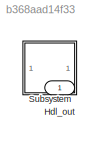
MODEL slx_b368aad14f33
KIND model
CONFIG AbsTol = auto
CONFIG EnableMultiTasking = off
CONFIG FixedStep = auto
CONFIG MaxStep = auto
CONFIG MinStep = auto
CONFIG RelTol = 1e-3
CONFIG SampleTimeConstraint = Unconstrained
CONFIG SolverName = VariableStepAuto
CONFIG StartTime = 0.0
CONFIG StopTime = 10.0
BLOCK [Outport] Hdl_out
  OutDataTypeStr = uint8
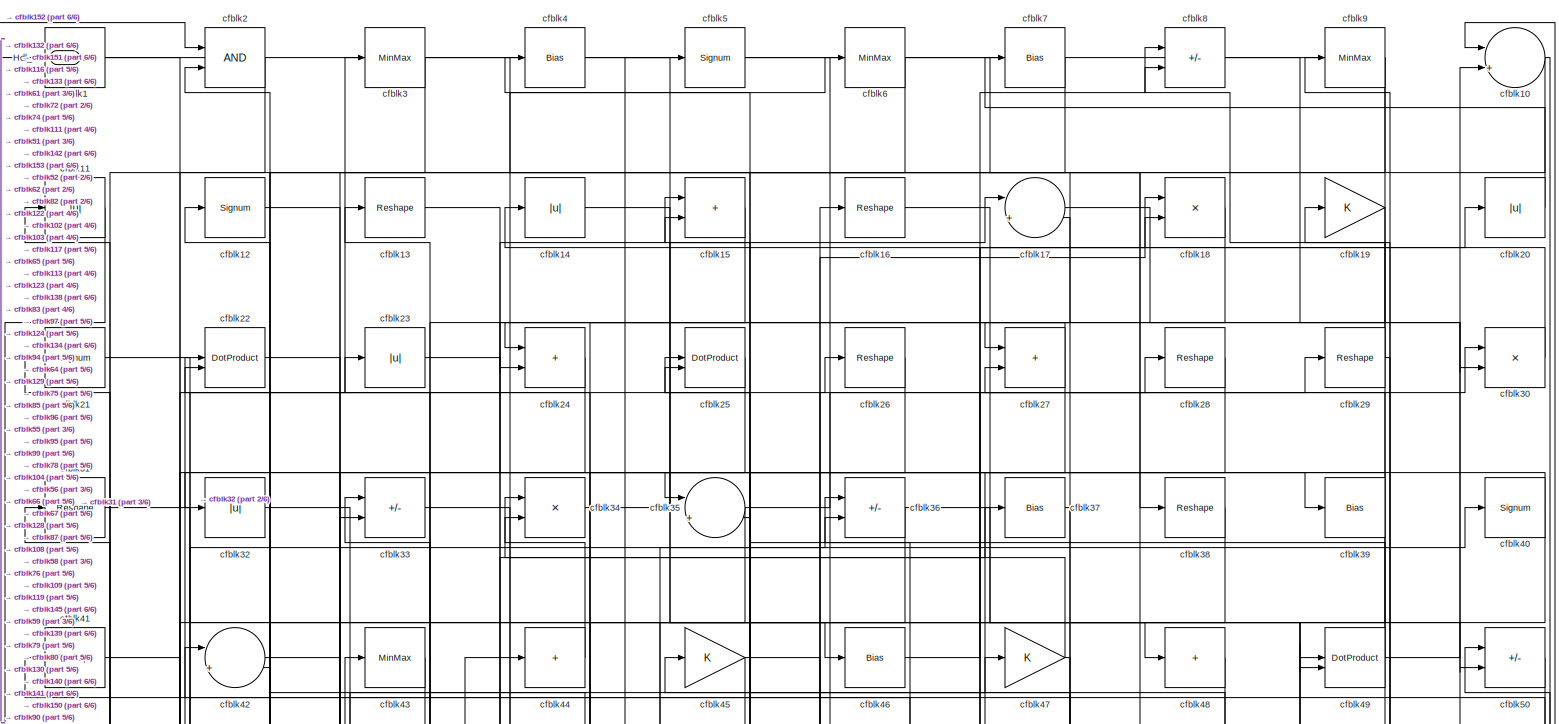
[diagram: Subsystem - part 1/6, full width, top band]
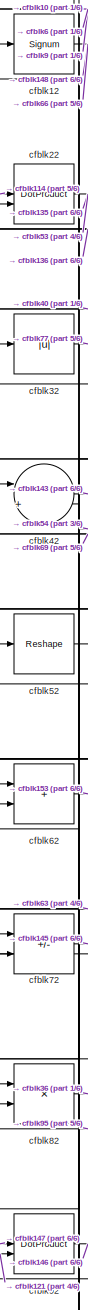
[diagram: Subsystem - part 2/6, middle left region]
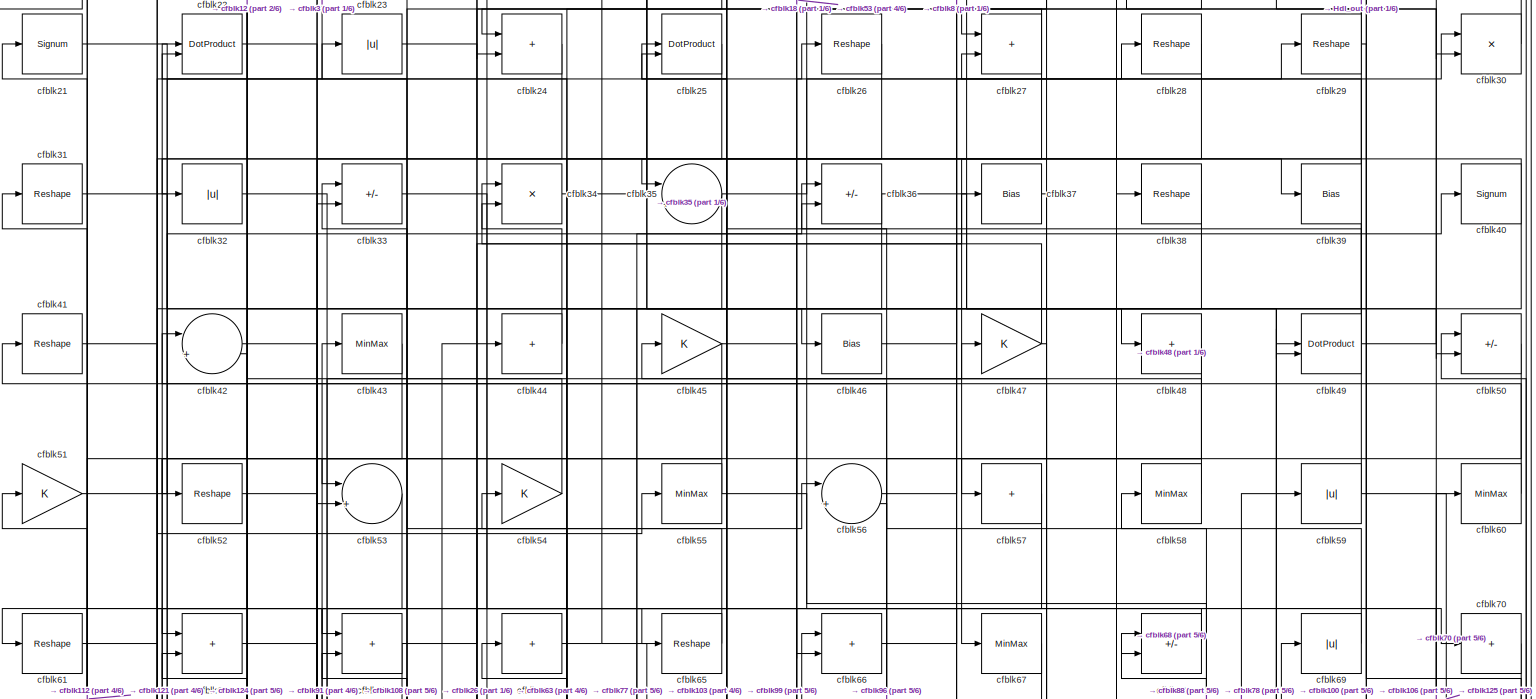
[diagram: Subsystem - part 3/6, full width, top band]
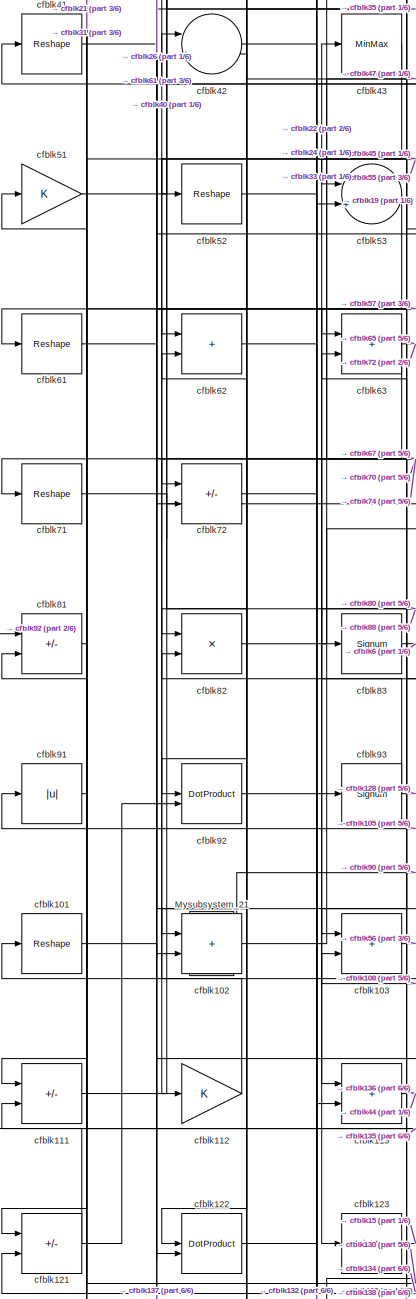
[diagram: Subsystem - part 4/6, middle left region]
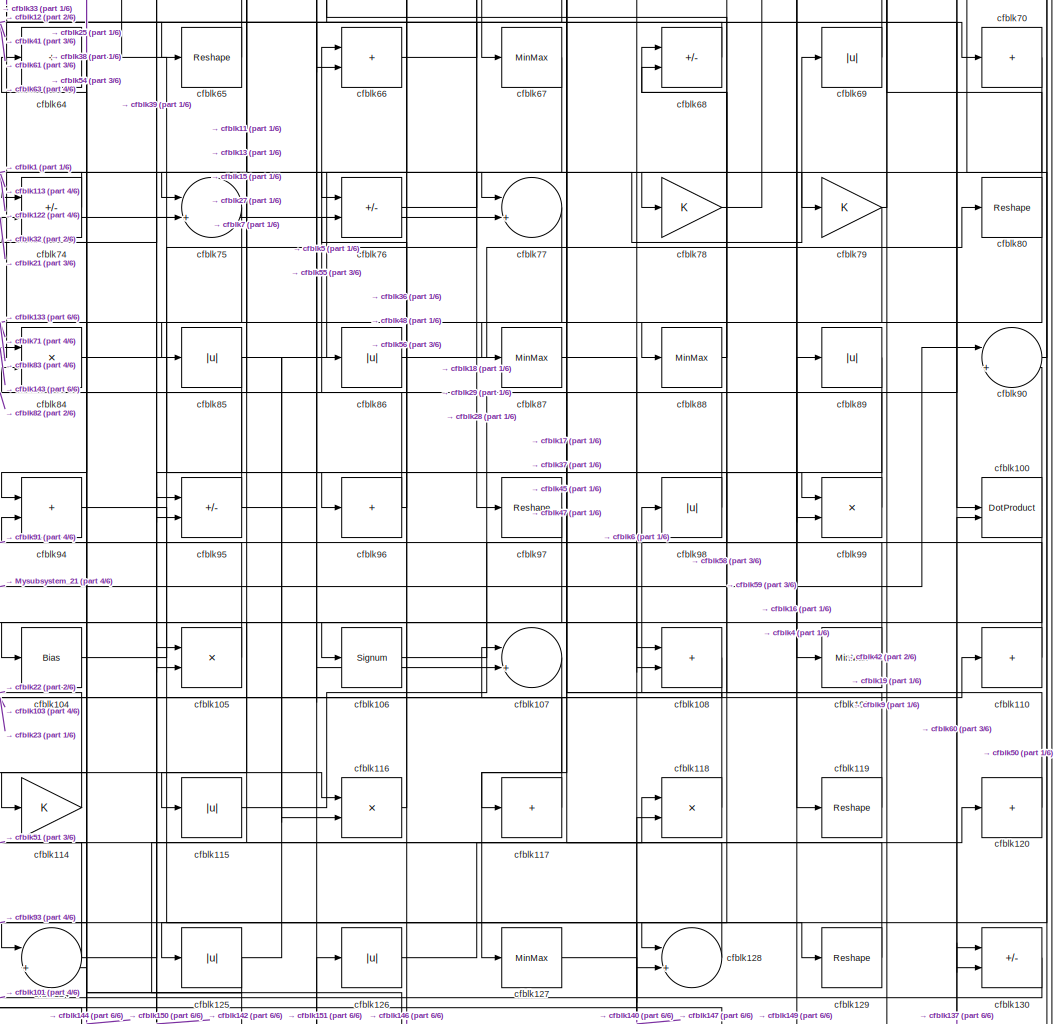
[diagram: Subsystem - part 5/6, central region]
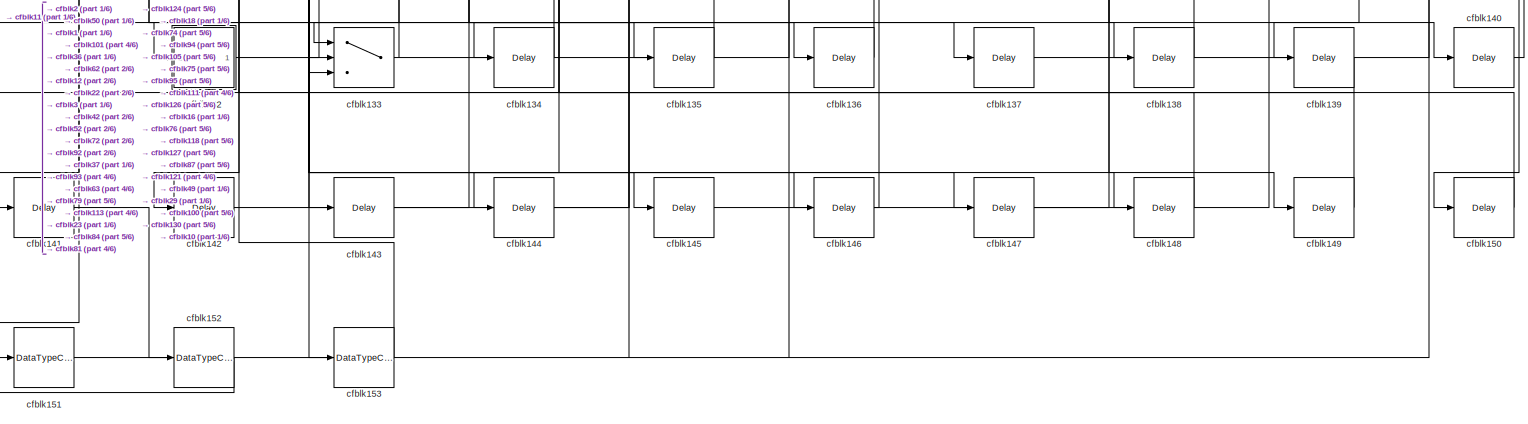
[diagram: Subsystem - part 6/6, full width, bottom band]
BLOCK [SubSystem] Subsystem
BLOCK [Outport] Subsystem/Hdl_out
  OutDataTypeStr = uint8
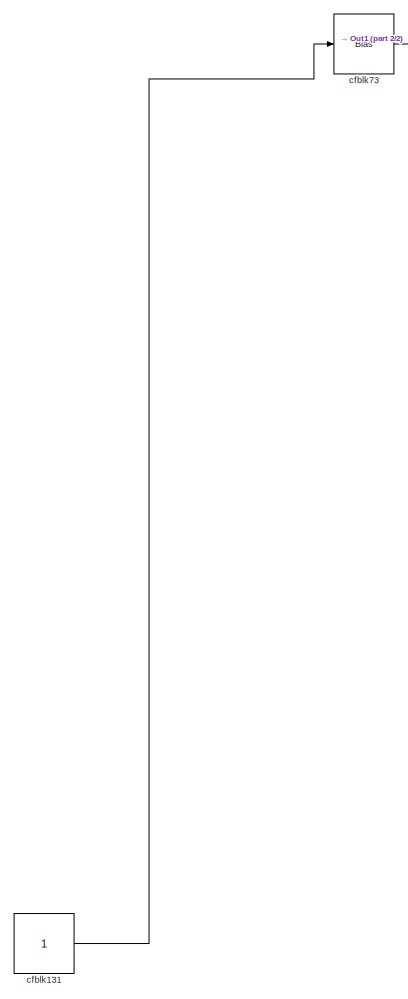
[diagram: Subsystem/Mysubsystem_21 - part 1/2, left side, full height]
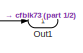
[diagram: Subsystem/Mysubsystem_21 - part 2/2, top right region]
BLOCK [SubSystem] Subsystem/Mysubsystem_21
  RTWFcnName = Mysubsystem_21
  RTWFcnNameOpts = User specified
  RTWFileNameOpts = Use function name
  RTWSystemCode = Reusable function
  TreatAsAtomicUnit = on
BLOCK [Outport] Subsystem/Mysubsystem_21/Out1
BLOCK [Constant] Subsystem/Mysubsystem_21/cfblk131
  SampleTime = -1
BLOCK [Bias] Subsystem/Mysubsystem_21/cfblk73
  Bias = 0.0
  SaturateOnIntegerOverflow = off
BLOCK [Reference] Subsystem/cfblk1  REF=hdlsllib/Logic and Bit
Operations/Bit Slice
  SourceBlock = hdlsllib/Logic and Bit\nOperations/Bit Slice
  SourceType = Bit Slice
BLOCK [Sum] Subsystem/cfblk10
  Inputs = |++
  OutDataTypeStr = uint8
BLOCK [DotProduct] Subsystem/cfblk100
  OutDataTypeStr = uint8
BLOCK [Reshape] Subsystem/cfblk101
BLOCK [Sum] Subsystem/cfblk102
  IconShape = rectangular
  OutDataTypeStr = uint8
BLOCK [Sum] Subsystem/cfblk103
  IconShape = rectangular
  OutDataTypeStr = uint8
BLOCK [Bias] Subsystem/cfblk104
  Bias = 0.0
  SaturateOnIntegerOverflow = off
BLOCK [Product] Subsystem/cfblk105
  Inputs = */
  OutDataTypeStr = uint8
  RndMeth = Zero
  SaturateOnIntegerOverflow = on
BLOCK [Signum] Subsystem/cfblk106
BLOCK [Sum] Subsystem/cfblk107
  Inputs = |++
  OutDataTypeStr = uint8
BLOCK [Sum] Subsystem/cfblk108
  IconShape = rectangular
  OutDataTypeStr = uint8
BLOCK [MinMax] Subsystem/cfblk109
  OutDataTypeStr = uint8
BLOCK [Abs] Subsystem/cfblk11
  OutDataTypeStr = uint8
  SaturateOnIntegerOverflow = off
BLOCK [Sum] Subsystem/cfblk110
  IconShape = rectangular
  Inputs = +
  OutDataTypeStr = uint8
BLOCK [Sum] Subsystem/cfblk111
  IconShape = rectangular
  Inputs = +-
  OutDataTypeStr = uint8
BLOCK [Gain] Subsystem/cfblk112
  OutDataTypeStr = uint8
BLOCK [Sum] Subsystem/cfblk113
  IconShape = rectangular
  OutDataTypeStr = uint8
BLOCK [Gain] Subsystem/cfblk114
  OutDataTypeStr = uint8
BLOCK [Abs] Subsystem/cfblk115
  OutDataTypeStr = uint8
  SaturateOnIntegerOverflow = off
BLOCK [Product] Subsystem/cfblk116
  Inputs = */
  OutDataTypeStr = uint8
  RndMeth = Zero
  SaturateOnIntegerOverflow = on
BLOCK [Sum] Subsystem/cfblk117
  IconShape = rectangular
  Inputs = +
  OutDataTypeStr = uint8
BLOCK [Product] Subsystem/cfblk118
  Inputs = */
  OutDataTypeStr = uint8
  RndMeth = Zero
  SaturateOnIntegerOverflow = on
BLOCK [Reshape] Subsystem/cfblk119
BLOCK [Signum] Subsystem/cfblk12
BLOCK [Sum] Subsystem/cfblk120
  IconShape = rectangular
  Inputs = +
  OutDataTypeStr = uint8
BLOCK [Sum] Subsystem/cfblk121
  IconShape = rectangular
  Inputs = +-
  OutDataTypeStr = uint8
BLOCK [DotProduct] Subsystem/cfblk122
  OutDataTypeStr = uint8
BLOCK [MinMax] Subsystem/cfblk123
  OutDataTypeStr = uint8
BLOCK [Sum] Subsystem/cfblk124
  Inputs = |++
  OutDataTypeStr = uint8
BLOCK [Abs] Subsystem/cfblk125
  OutDataTypeStr = uint8
  SaturateOnIntegerOverflow = off
BLOCK [Abs] Subsystem/cfblk126
  OutDataTypeStr = uint8
  SaturateOnIntegerOverflow = off
BLOCK [MinMax] Subsystem/cfblk127
  OutDataTypeStr = uint8
BLOCK [Sum] Subsystem/cfblk128
  Inputs = |++
  OutDataTypeStr = uint8
BLOCK [Reshape] Subsystem/cfblk129
BLOCK [Reshape] Subsystem/cfblk13
BLOCK [Sum] Subsystem/cfblk130
  IconShape = rectangular
  Inputs = +-
  OutDataTypeStr = uint8
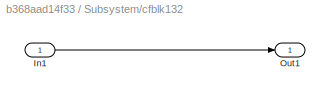
BLOCK [SubSystem] Subsystem/cfblk132
  LibrarySourceBlock = hdlsllib/Ports &\nSubsystems/Subsystem
BLOCK [Inport] Subsystem/cfblk132/In1
BLOCK [Outport] Subsystem/cfblk132/Out1
BLOCK [Switch] Subsystem/cfblk133
  InputSameDT = off
  OutDataTypeStr = uint8
  SaturateOnIntegerOverflow = off
BLOCK [Delay] Subsystem/cfblk134
  InputPortMap = u0
  SampleTime = 1
BLOCK [Delay] Subsystem/cfblk135
  InputPortMap = u0
  SampleTime = 1
BLOCK [Delay] Subsystem/cfblk136
  InputPortMap = u0
  SampleTime = 1
BLOCK [Delay] Subsystem/cfblk137
  InputPortMap = u0
  SampleTime = 1
BLOCK [Delay] Subsystem/cfblk138
  InputPortMap = u0
  SampleTime = 1
BLOCK [Delay] Subsystem/cfblk139
  InputPortMap = u0
  SampleTime = 1
BLOCK [Abs] Subsystem/cfblk14
  OutDataTypeStr = uint8
  SaturateOnIntegerOverflow = off
BLOCK [Delay] Subsystem/cfblk140
  InputPortMap = u0
  SampleTime = 1
BLOCK [Delay] Subsystem/cfblk141
  InputPortMap = u0
  SampleTime = 1
BLOCK [Delay] Subsystem/cfblk142
  InputPortMap = u0
  SampleTime = 1
BLOCK [Delay] Subsystem/cfblk143
  InputPortMap = u0
  SampleTime = 1
BLOCK [Delay] Subsystem/cfblk144
  InputPortMap = u0
  SampleTime = 1
BLOCK [Delay] Subsystem/cfblk145
  InputPortMap = u0
  SampleTime = 1
BLOCK [Delay] Subsystem/cfblk146
  InputPortMap = u0
  SampleTime = 1
BLOCK [Delay] Subsystem/cfblk147
  InputPortMap = u0
  SampleTime = 1
BLOCK [Delay] Subsystem/cfblk148
  InputPortMap = u0
  SampleTime = 1
BLOCK [Delay] Subsystem/cfblk149
  InputPortMap = u0
  SampleTime = 1
BLOCK [Sum] Subsystem/cfblk15
  IconShape = rectangular
  OutDataTypeStr = uint8
BLOCK [Delay] Subsystem/cfblk150
  InputPortMap = u0
  SampleTime = 1
BLOCK [DataTypeConversion] Subsystem/cfblk151
  OutDataTypeStr = uint8
  RndMeth = Floor
  SaturateOnIntegerOverflow = off
BLOCK [DataTypeConversion] Subsystem/cfblk152
  OutDataTypeStr = uint8
  RndMeth = Floor
  SaturateOnIntegerOverflow = off
BLOCK [DataTypeConversion] Subsystem/cfblk153
  OutDataTypeStr = uint8
  RndMeth = Floor
  SaturateOnIntegerOverflow = off
BLOCK [Reshape] Subsystem/cfblk16
BLOCK [Sum] Subsystem/cfblk17
  Inputs = |++
  OutDataTypeStr = uint8
BLOCK [Product] Subsystem/cfblk18
  Inputs = */
  OutDataTypeStr = uint8
  RndMeth = Zero
  SaturateOnIntegerOverflow = on
BLOCK [Gain] Subsystem/cfblk19
  OutDataTypeStr = uint8
BLOCK [Logic] Subsystem/cfblk2
  AllPortsSameDT = off
  OutDataTypeStr = boolean
BLOCK [Abs] Subsystem/cfblk20
  OutDataTypeStr = uint8
  SaturateOnIntegerOverflow = off
BLOCK [Signum] Subsystem/cfblk21
BLOCK [DotProduct] Subsystem/cfblk22
  OutDataTypeStr = uint8
BLOCK [Abs] Subsystem/cfblk23
  OutDataTypeStr = uint8
  SaturateOnIntegerOverflow = off
BLOCK [Sum] Subsystem/cfblk24
  IconShape = rectangular
  OutDataTypeStr = uint8
BLOCK [DotProduct] Subsystem/cfblk25
  OutDataTypeStr = uint8
BLOCK [Reshape] Subsystem/cfblk26
BLOCK [Sum] Subsystem/cfblk27
  IconShape = rectangular
  OutDataTypeStr = uint8
BLOCK [Reshape] Subsystem/cfblk28
BLOCK [Reshape] Subsystem/cfblk29
BLOCK [MinMax] Subsystem/cfblk3
  OutDataTypeStr = uint8
BLOCK [Product] Subsystem/cfblk30
  Inputs = */
  OutDataTypeStr = uint8
  RndMeth = Zero
  SaturateOnIntegerOverflow = on
BLOCK [Reshape] Subsystem/cfblk31
BLOCK [Abs] Subsystem/cfblk32
  OutDataTypeStr = uint8
  SaturateOnIntegerOverflow = off
BLOCK [Sum] Subsystem/cfblk33
  IconShape = rectangular
  Inputs = +-
  OutDataTypeStr = uint8
BLOCK [Product] Subsystem/cfblk34
  Inputs = */
  OutDataTypeStr = uint8
  RndMeth = Zero
  SaturateOnIntegerOverflow = on
BLOCK [Sum] Subsystem/cfblk35
  Inputs = |++
  OutDataTypeStr = uint8
BLOCK [Sum] Subsystem/cfblk36
  IconShape = rectangular
  Inputs = +-
  OutDataTypeStr = uint8
BLOCK [Bias] Subsystem/cfblk37
  Bias = 0.0
  SaturateOnIntegerOverflow = off
BLOCK [Reshape] Subsystem/cfblk38
BLOCK [Bias] Subsystem/cfblk39
  Bias = 0.0
  SaturateOnIntegerOverflow = off
BLOCK [Bias] Subsystem/cfblk4
  Bias = 0.0
  SaturateOnIntegerOverflow = off
BLOCK [Signum] Subsystem/cfblk40
BLOCK [Reshape] Subsystem/cfblk41
BLOCK [Sum] Subsystem/cfblk42
  Inputs = |++
  OutDataTypeStr = uint8
BLOCK [MinMax] Subsystem/cfblk43
  OutDataTypeStr = uint8
BLOCK [Sum] Subsystem/cfblk44
  IconShape = rectangular
  Inputs = +
  OutDataTypeStr = uint8
BLOCK [Gain] Subsystem/cfblk45
  OutDataTypeStr = uint8
BLOCK [Bias] Subsystem/cfblk46
  Bias = 0.0
  SaturateOnIntegerOverflow = off
BLOCK [Gain] Subsystem/cfblk47
  OutDataTypeStr = uint8
BLOCK [Sum] Subsystem/cfblk48
  IconShape = rectangular
  Inputs = +
  OutDataTypeStr = uint8
BLOCK [DotProduct] Subsystem/cfblk49
  OutDataTypeStr = uint8
BLOCK [Signum] Subsystem/cfblk5
BLOCK [Sum] Subsystem/cfblk50
  IconShape = rectangular
  Inputs = +-
  OutDataTypeStr = uint8
BLOCK [Gain] Subsystem/cfblk51
  OutDataTypeStr = uint8
BLOCK [Reshape] Subsystem/cfblk52
BLOCK [Sum] Subsystem/cfblk53
  Inputs = |++
  OutDataTypeStr = uint8
BLOCK [Gain] Subsystem/cfblk54
  OutDataTypeStr = uint8
BLOCK [MinMax] Subsystem/cfblk55
  OutDataTypeStr = uint8
BLOCK [Sum] Subsystem/cfblk56
  Inputs = |++
  OutDataTypeStr = uint8
BLOCK [Sum] Subsystem/cfblk57
  IconShape = rectangular
  Inputs = +
  OutDataTypeStr = uint8
BLOCK [MinMax] Subsystem/cfblk58
  OutDataTypeStr = uint8
BLOCK [Abs] Subsystem/cfblk59
  OutDataTypeStr = uint8
  SaturateOnIntegerOverflow = off
BLOCK [MinMax] Subsystem/cfblk6
  OutDataTypeStr = uint8
BLOCK [MinMax] Subsystem/cfblk60
  OutDataTypeStr = uint8
BLOCK [Reshape] Subsystem/cfblk61
BLOCK [Sum] Subsystem/cfblk62
  IconShape = rectangular
  OutDataTypeStr = uint8
BLOCK [Sum] Subsystem/cfblk63
  IconShape = rectangular
  OutDataTypeStr = uint8
BLOCK [Sum] Subsystem/cfblk64
  IconShape = rectangular
  Inputs = +
  OutDataTypeStr = uint8
BLOCK [Reshape] Subsystem/cfblk65
BLOCK [Sum] Subsystem/cfblk66
  IconShape = rectangular
  OutDataTypeStr = uint8
BLOCK [MinMax] Subsystem/cfblk67
  OutDataTypeStr = uint8
BLOCK [Sum] Subsystem/cfblk68
  IconShape = rectangular
  Inputs = +-
  OutDataTypeStr = uint8
BLOCK [Abs] Subsystem/cfblk69
  OutDataTypeStr = uint8
  SaturateOnIntegerOverflow = off
BLOCK [Bias] Subsystem/cfblk7
  Bias = 0.0
  SaturateOnIntegerOverflow = off
BLOCK [Sum] Subsystem/cfblk70
  IconShape = rectangular
  Inputs = +
  OutDataTypeStr = uint8
BLOCK [Reshape] Subsystem/cfblk71
BLOCK [Sum] Subsystem/cfblk72
  IconShape = rectangular
  Inputs = +-
  OutDataTypeStr = uint8
BLOCK [Sum] Subsystem/cfblk74
  IconShape = rectangular
  Inputs = +-
  OutDataTypeStr = uint8
BLOCK [Sum] Subsystem/cfblk75
  Inputs = |++
  OutDataTypeStr = uint8
BLOCK [Sum] Subsystem/cfblk76
  IconShape = rectangular
  Inputs = +-
  OutDataTypeStr = uint8
BLOCK [Sum] Subsystem/cfblk77
  Inputs = |++
  OutDataTypeStr = uint8
BLOCK [Gain] Subsystem/cfblk78
  OutDataTypeStr = uint8
BLOCK [Gain] Subsystem/cfblk79
  OutDataTypeStr = uint8
BLOCK [Sum] Subsystem/cfblk8
  IconShape = rectangular
  Inputs = +-
  OutDataTypeStr = uint8
BLOCK [Reshape] Subsystem/cfblk80
BLOCK [Sum] Subsystem/cfblk81
  IconShape = rectangular
  Inputs = +-
  OutDataTypeStr = uint8
BLOCK [Product] Subsystem/cfblk82
  Inputs = */
  OutDataTypeStr = uint8
  RndMeth = Zero
  SaturateOnIntegerOverflow = on
BLOCK [Signum] Subsystem/cfblk83
BLOCK [Product] Subsystem/cfblk84
  Inputs = */
  OutDataTypeStr = uint8
  RndMeth = Zero
  SaturateOnIntegerOverflow = on
BLOCK [Abs] Subsystem/cfblk85
  OutDataTypeStr = uint8
  SaturateOnIntegerOverflow = off
BLOCK [Abs] Subsystem/cfblk86
  OutDataTypeStr = uint8
  SaturateOnIntegerOverflow = off
BLOCK [MinMax] Subsystem/cfblk87
  OutDataTypeStr = uint8
BLOCK [MinMax] Subsystem/cfblk88
  OutDataTypeStr = uint8
BLOCK [Abs] Subsystem/cfblk89
  OutDataTypeStr = uint8
  SaturateOnIntegerOverflow = off
BLOCK [MinMax] Subsystem/cfblk9
  OutDataTypeStr = uint8
BLOCK [Sum] Subsystem/cfblk90
  Inputs = |++
  OutDataTypeStr = uint8
BLOCK [Abs] Subsystem/cfblk91
  OutDataTypeStr = uint8
  SaturateOnIntegerOverflow = off
BLOCK [DotProduct] Subsystem/cfblk92
  OutDataTypeStr = uint8
BLOCK [Signum] Subsystem/cfblk93
BLOCK [Sum] Subsystem/cfblk94
  IconShape = rectangular
  OutDataTypeStr = uint8
BLOCK [Sum] Subsystem/cfblk95
  IconShape = rectangular
  Inputs = +-
  OutDataTypeStr = uint8
BLOCK [Sum] Subsystem/cfblk96
  IconShape = rectangular
  Inputs = +
  OutDataTypeStr = uint8
BLOCK [Reshape] Subsystem/cfblk97
BLOCK [Abs] Subsystem/cfblk98
  OutDataTypeStr = uint8
  SaturateOnIntegerOverflow = off
BLOCK [Product] Subsystem/cfblk99
  Inputs = */
  OutDataTypeStr = uint8
  RndMeth = Zero
  SaturateOnIntegerOverflow = on
LINE Subsystem/Mysubsystem_21/cfblk131:1 -> Subsystem/Mysubsystem_21/cfblk73:1
LINE Subsystem/Mysubsystem_21/cfblk73:1 -> Subsystem/Mysubsystem_21/Out1:1
LINE Subsystem/Mysubsystem_21:1 -> Subsystem/cfblk90:1
NET Subsystem/cfblk100:1 -> Subsystem/cfblk106:1, Subsystem/cfblk90:2
LINE Subsystem/cfblk101:1 -> Subsystem/cfblk137:1
LINE Subsystem/cfblk102:1 -> Subsystem/cfblk47:1
LINE Subsystem/cfblk103:1 -> Subsystem/cfblk56:1
LINE Subsystem/cfblk104:1 -> Subsystem/cfblk29:1
LINE Subsystem/cfblk105:1 -> Subsystem/cfblk91:1
LINE Subsystem/cfblk106:1 -> Subsystem/cfblk60:1
LINE Subsystem/cfblk107:1 -> Subsystem/cfblk127:1
LINE Subsystem/cfblk108:1 -> Subsystem/cfblk103:2
LINE Subsystem/cfblk109:1 -> Subsystem/cfblk64:1
NET Subsystem/cfblk10:1 -> Subsystem/cfblk150:1, Subsystem/cfblk27:1, Subsystem/cfblk62:1
LINE Subsystem/cfblk110:1 -> Subsystem/cfblk68:1
LINE Subsystem/cfblk111:1 -> Subsystem/cfblk40:1
LINE Subsystem/cfblk112:1 -> Subsystem/cfblk31:1
NET Subsystem/cfblk113:1 -> Subsystem/cfblk136:1, Subsystem/cfblk44:1
LINE Subsystem/cfblk114:1 -> Subsystem/cfblk22:1
LINE Subsystem/cfblk115:1 -> Subsystem/cfblk89:1
LINE Subsystem/cfblk116:1 -> Subsystem/cfblk36:1
LINE Subsystem/cfblk117:1 -> Subsystem/cfblk23:1
NET Subsystem/cfblk118:1 -> Subsystem/cfblk84:2, Subsystem/cfblk98:1
LINE Subsystem/cfblk119:1 -> Subsystem/cfblk45:1
LINE Subsystem/cfblk11:1 -> Subsystem/cfblk132:1
LINE Subsystem/cfblk120:1 -> Subsystem/cfblk68:2
NET Subsystem/cfblk121:1 -> Subsystem/cfblk81:1, Subsystem/cfblk92:2
LINE Subsystem/cfblk122:1 -> Subsystem/cfblk33:2
LINE Subsystem/cfblk123:1 -> Subsystem/cfblk15:1
NET Subsystem/cfblk124:1 -> Subsystem/cfblk110:1, Subsystem/cfblk144:1, Subsystem/cfblk51:1
NET Subsystem/cfblk125:1 -> Subsystem/cfblk120:1, Subsystem/cfblk86:1
LINE Subsystem/cfblk126:1 -> Subsystem/cfblk118:1
LINE Subsystem/cfblk127:1 -> Subsystem/cfblk140:1
NET Subsystem/cfblk128:1 -> Subsystem/cfblk107:1, Subsystem/cfblk17:2
NET Subsystem/cfblk129:1 -> Subsystem/cfblk11:1, Subsystem/cfblk15:2
NET Subsystem/cfblk12:1 -> Subsystem/cfblk148:1, Subsystem/cfblk66:2
LINE Subsystem/cfblk130:1 -> Subsystem/cfblk101:1
LINE Subsystem/cfblk132/In1:1 -> Subsystem/cfblk132/Out1:1
NET Subsystem/cfblk132:1 -> Subsystem/cfblk37:1, Subsystem/cfblk93:1
NET Subsystem/cfblk133:1 -> Subsystem/cfblk16:1, Subsystem/cfblk63:2
LINE Subsystem/cfblk134:1 -> Subsystem/cfblk81:2
LINE Subsystem/cfblk135:1 -> Subsystem/cfblk111:2
LINE Subsystem/cfblk136:1 -> Subsystem/cfblk22:2
LINE Subsystem/cfblk137:1 -> Subsystem/cfblk130:1
LINE Subsystem/cfblk138:1 -> Subsystem/cfblk121:2
LINE Subsystem/cfblk139:1 -> Subsystem/cfblk1:1
LINE Subsystem/cfblk13:1 -> Subsystem/cfblk39:1
LINE Subsystem/cfblk140:1 -> Subsystem/cfblk10:1
LINE Subsystem/cfblk141:1 -> Subsystem/cfblk152:1
LINE Subsystem/cfblk142:1 -> Subsystem/cfblk95:1
LINE Subsystem/cfblk143:1 -> Subsystem/cfblk84:1
LINE Subsystem/cfblk144:1 -> Subsystem/cfblk105:1
LINE Subsystem/cfblk145:1 -> Subsystem/cfblk49:1
LINE Subsystem/cfblk146:1 -> Subsystem/cfblk76:2
LINE Subsystem/cfblk147:1 -> Subsystem/cfblk118:2
LINE Subsystem/cfblk148:1 -> Subsystem/cfblk62:2
LINE Subsystem/cfblk149:1 -> Subsystem/cfblk94:2
LINE Subsystem/cfblk14:1 -> Subsystem/cfblk46:1
LINE Subsystem/cfblk150:1 -> Subsystem/cfblk74:2
NET Subsystem/cfblk151:1 -> Subsystem/cfblk100:2, Subsystem/cfblk126:1, Subsystem/cfblk75:2
LINE Subsystem/cfblk152:1 -> Subsystem/cfblk2:1
LINE Subsystem/cfblk153:1 -> Subsystem/cfblk2:2
LINE Subsystem/cfblk15:1 -> Subsystem/cfblk24:2
LINE Subsystem/cfblk16:1 -> Subsystem/cfblk119:1
LINE Subsystem/cfblk17:1 -> Subsystem/cfblk130:2
LINE Subsystem/cfblk18:1 -> Subsystem/cfblk134:1
LINE Subsystem/cfblk19:1 -> Subsystem/cfblk103:1
NET Subsystem/cfblk1:1 -> Subsystem/cfblk116:1, Subsystem/cfblk133:2, Subsystem/cfblk74:1
LINE Subsystem/cfblk20:1 -> Subsystem/cfblk7:1
LINE Subsystem/cfblk21:1 -> Subsystem/cfblk77:2
NET Subsystem/cfblk22:1 -> Subsystem/cfblk135:1, Subsystem/cfblk53:2
LINE Subsystem/cfblk23:1 -> Subsystem/cfblk138:1
LINE Subsystem/cfblk24:1 -> Subsystem/cfblk113:2
LINE Subsystem/cfblk25:1 -> Subsystem/cfblk124:2
LINE Subsystem/cfblk26:1 -> Subsystem/cfblk122:2
NET Subsystem/cfblk27:1 -> Subsystem/cfblk24:1, Subsystem/cfblk85:1
LINE Subsystem/cfblk28:1 -> Subsystem/cfblk67:1
NET Subsystem/cfblk29:1 -> Subsystem/cfblk139:1, Subsystem/cfblk8:2
LINE Subsystem/cfblk2:1 -> Subsystem/cfblk151:1
LINE Subsystem/cfblk30:1 -> Subsystem/cfblk14:1
LINE Subsystem/cfblk31:1 -> Subsystem/cfblk48:1
LINE Subsystem/cfblk32:1 -> Subsystem/cfblk77:1
LINE Subsystem/cfblk33:1 -> Subsystem/cfblk97:1
LINE Subsystem/cfblk34:1 -> Subsystem/cfblk17:1
NET Subsystem/cfblk35:1 -> Subsystem/cfblk102:2, Subsystem/cfblk30:1
NET Subsystem/cfblk36:1 -> Subsystem/cfblk142:1, Subsystem/cfblk50:2
LINE Subsystem/cfblk37:1 -> Subsystem/cfblk87:1
LINE Subsystem/cfblk38:1 -> Subsystem/cfblk94:1
NET Subsystem/cfblk39:1 -> Subsystem/cfblk27:2, Subsystem/cfblk35:1, Subsystem/cfblk95:2
NET Subsystem/cfblk3:1 -> Subsystem/cfblk133:3, Subsystem/cfblk38:1
NET Subsystem/cfblk40:1 -> Subsystem/cfblk32:1, Subsystem/cfblk49:2
LINE Subsystem/cfblk41:1 -> Subsystem/cfblk70:1
LINE Subsystem/cfblk42:1 -> Subsystem/cfblk143:1
LINE Subsystem/cfblk43:1 -> Subsystem/cfblk112:1
LINE Subsystem/cfblk44:1 -> Subsystem/cfblk34:1
NET Subsystem/cfblk45:1 -> Subsystem/cfblk102:1, Subsystem/cfblk99:2
LINE Subsystem/cfblk46:1 -> Subsystem/cfblk20:1
NET Subsystem/cfblk47:1 -> Subsystem/cfblk117:1, Subsystem/cfblk34:2
LINE Subsystem/cfblk48:1 -> Subsystem/cfblk76:1
NET Subsystem/cfblk49:1 -> Subsystem/cfblk10:2, Subsystem/cfblk25:2, Subsystem/cfblk4:1
LINE Subsystem/cfblk4:1 -> Subsystem/cfblk109:1
LINE Subsystem/cfblk50:1 -> Subsystem/cfblk141:1
LINE Subsystem/cfblk51:1 -> Subsystem/cfblk3:1
NET Subsystem/cfblk52:1 -> Subsystem/cfblk147:1, Subsystem/cfblk82:1, Subsystem/cfblk92:1
LINE Subsystem/cfblk53:1 -> Subsystem/cfblk123:1
LINE Subsystem/cfblk54:1 -> Subsystem/cfblk12:1
NET Subsystem/cfblk55:1 -> Subsystem/cfblk100:1, Subsystem/cfblk18:2, Subsystem/cfblk53:1
LINE Subsystem/cfblk56:1 -> Subsystem/cfblk8:1
LINE Subsystem/cfblk57:1 -> Subsystem/cfblk121:1
NET Subsystem/cfblk58:1 -> Subsystem/cfblk35:2, Subsystem/cfblk57:1
NET Subsystem/cfblk59:1 -> Subsystem/Hdl_out:1, Subsystem/cfblk125:1
LINE Subsystem/cfblk5:1 -> Subsystem/cfblk78:1
LINE Subsystem/cfblk60:1 -> Subsystem/cfblk41:1
NET Subsystem/cfblk61:1 -> Subsystem/cfblk108:2, Subsystem/cfblk26:1, Subsystem/cfblk55:1, Subsystem/cfblk63:1
LINE Subsystem/cfblk62:1 -> Subsystem/cfblk153:1
NET Subsystem/cfblk63:1 -> Subsystem/cfblk65:1, Subsystem/cfblk72:1
NET Subsystem/cfblk64:1 -> Subsystem/cfblk5:1, Subsystem/cfblk99:1
LINE Subsystem/cfblk65:1 -> Subsystem/cfblk33:1
LINE Subsystem/cfblk66:1 -> Subsystem/cfblk18:1
LINE Subsystem/cfblk67:1 -> Subsystem/cfblk122:1
LINE Subsystem/cfblk68:1 -> Subsystem/cfblk61:1
LINE Subsystem/cfblk69:1 -> Subsystem/cfblk42:1
NET Subsystem/cfblk6:1 -> Subsystem/cfblk108:1, Subsystem/cfblk72:2
LINE Subsystem/cfblk70:1 -> Subsystem/cfblk113:1
LINE Subsystem/cfblk71:1 -> Subsystem/cfblk88:1
LINE Subsystem/cfblk72:1 -> Subsystem/cfblk145:1
LINE Subsystem/cfblk74:1 -> Subsystem/cfblk71:1
LINE Subsystem/cfblk75:1 -> Subsystem/cfblk114:1
LINE Subsystem/cfblk76:1 -> Subsystem/cfblk79:1
LINE Subsystem/cfblk77:1 -> Subsystem/cfblk124:1
LINE Subsystem/cfblk78:1 -> Subsystem/cfblk59:1
NET Subsystem/cfblk79:1 -> Subsystem/cfblk133:1, Subsystem/cfblk9:1
LINE Subsystem/cfblk7:1 -> Subsystem/cfblk75:1
NET Subsystem/cfblk80:1 -> Subsystem/cfblk19:1, Subsystem/cfblk83:1
LINE Subsystem/cfblk81:1 -> Subsystem/cfblk111:1
NET Subsystem/cfblk82:1 -> Subsystem/cfblk36:2, Subsystem/cfblk42:2
LINE Subsystem/cfblk83:1 -> Subsystem/cfblk6:1
LINE Subsystem/cfblk84:1 -> Subsystem/cfblk96:1
NET Subsystem/cfblk85:1 -> Subsystem/cfblk105:2, Subsystem/cfblk116:2, Subsystem/cfblk69:1
LINE Subsystem/cfblk86:1 -> Subsystem/cfblk80:1
LINE Subsystem/cfblk87:1 -> Subsystem/cfblk149:1
LINE Subsystem/cfblk88:1 -> Subsystem/cfblk58:1
LINE Subsystem/cfblk89:1 -> Subsystem/cfblk128:1
LINE Subsystem/cfblk8:1 -> Subsystem/cfblk30:2
LINE Subsystem/cfblk90:1 -> Subsystem/cfblk50:1
LINE Subsystem/cfblk91:1 -> Subsystem/cfblk21:1
LINE Subsystem/cfblk92:1 -> Subsystem/cfblk146:1
NET Subsystem/cfblk93:1 -> Subsystem/cfblk128:2, Subsystem/cfblk43:1
LINE Subsystem/cfblk94:1 -> Subsystem/cfblk129:1
NET Subsystem/cfblk95:1 -> Subsystem/cfblk107:2, Subsystem/cfblk28:1, Subsystem/cfblk82:2
NET Subsystem/cfblk96:1 -> Subsystem/cfblk13:1, Subsystem/cfblk25:1, Subsystem/cfblk56:2
NET Subsystem/cfblk97:1 -> Subsystem/cfblk104:1, Subsystem/cfblk115:1
LINE Subsystem/cfblk98:1 -> Subsystem/cfblk66:1
LINE Subsystem/cfblk99:1 -> Subsystem/cfblk54:1
LINE Subsystem/cfblk9:1 -> Subsystem/cfblk52:1
note: NET lines group one-source signal fan-out (src -> all destinations, sorted); 1:1 wires keep LINE
